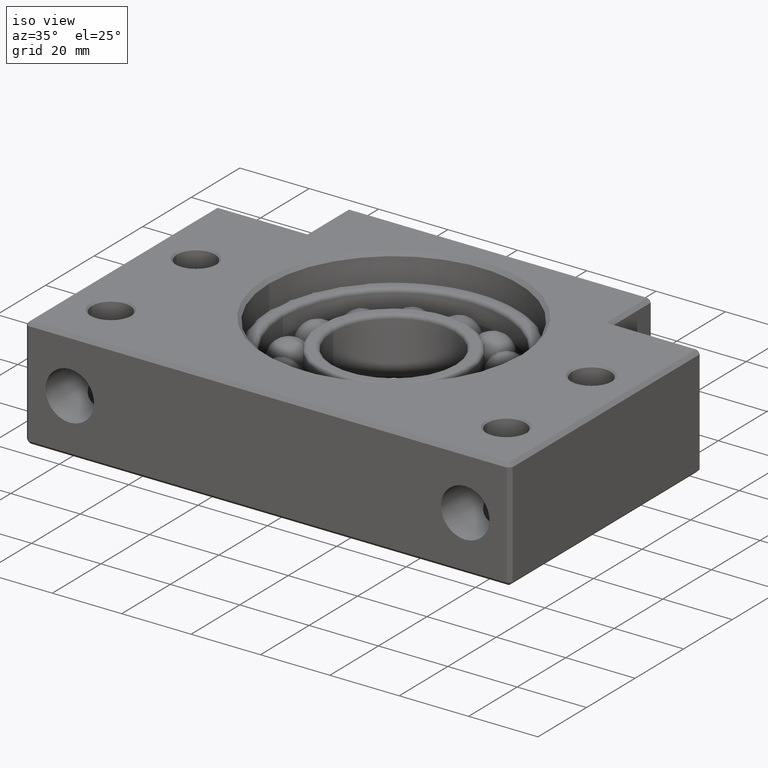
[diagram: clean part render]
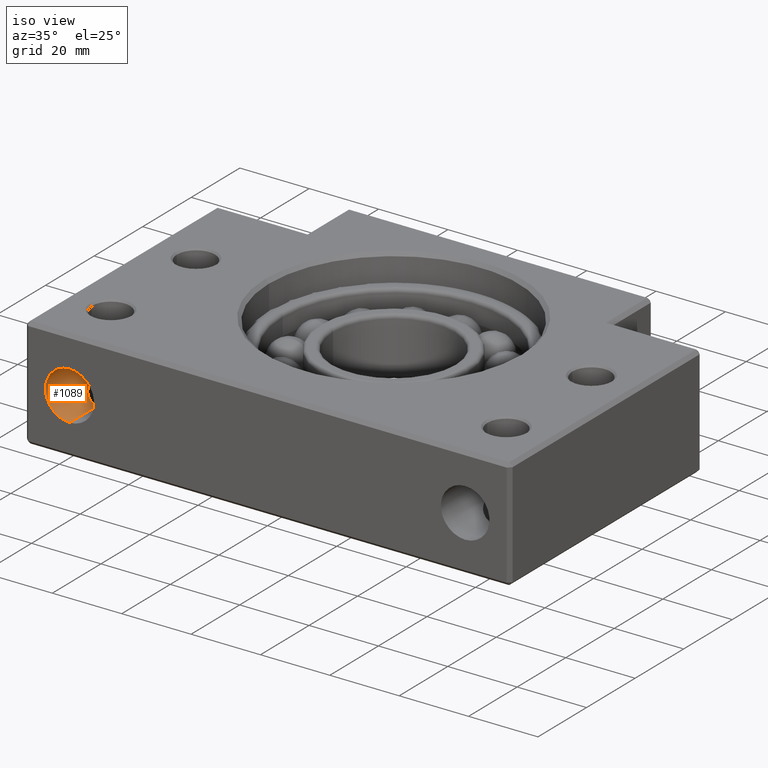
[diagram: same view with one face highlighted and labeled with its STEP entity id]
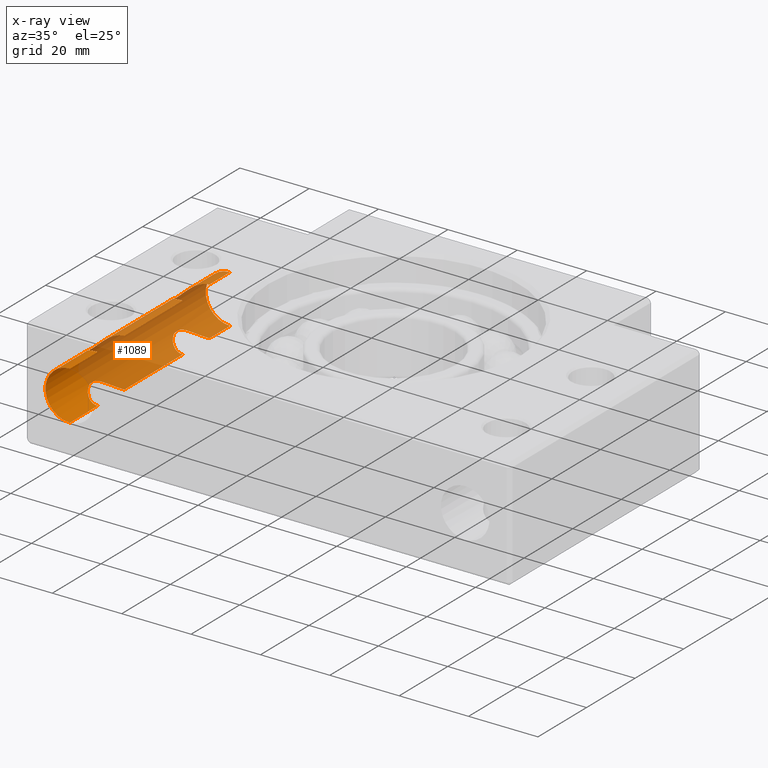
[diagram: x-ray of the same camera — body ghosted, the highlighted face saturated]
A machine part, iso view. The second image highlights one B-rep face of the part: STEP entity #1089.
The next image is the same camera in x-ray: the body ghosted, the highlighted face saturated — about 76% of this face is hidden behind the body in this view.
In plain terms, the highlighted cylindrical surface (edge-blend (fillet) strip) has radius 7 mm, axis along (-0, 1, -0).
Its self-contained STEP definition (entity closure, byte-faithful):
#10 = CARTESIAN_POINT ( 'NONE',  ( -56.99999999999995700, 11.49999999999999300, -6.999999999999992000 ) ) ;
#470 = CARTESIAN_POINT ( 'NONE',  ( -60.41107785468752000, 21.32865308740681700, 6.121139042766801100 ) ) ;
#481 = CARTESIAN_POINT ( 'NONE',  ( -59.83440123587423900, 21.72640024923098100, 6.408585253056894100 ) ) ;
#525 = LINE ( 'NONE', #528, #526 ) ;
#526 = VECTOR ( 'NONE', #527, 1000.000000000000000 ) ;
#527 = DIRECTION ( 'NONE',  ( -0.0000000000000000000, 1.000000000000000000, -0.0000000000000000000 ) ) ;
#528 = CARTESIAN_POINT ( 'NONE',  ( -56.99999999999995700, 78.99999999999995700, -6.999999999999992000 ) ) ;
#539 = CARTESIAN_POINT ( 'NONE',  ( -59.52356978322551800, 21.90067786442644900, 6.538929171008184000 ) ) ;
#560 = CARTESIAN_POINT ( 'NONE',  ( -58.84915946618338700, 22.19284673857340100, 6.760666270634499300 ) ) ;
#1081 = EDGE_CURVE ( 'NONE', #1716, #1712, #3298, .T. ) ;
#1083 = EDGE_CURVE ( 'NONE', #1712, #1093, #3287, .T. ) ;
#1084 = EDGE_LOOP ( 'NONE', ( #1085, #1717, #1130, #1124, #1125, #1123, #1119, #1121, #1103, #1114, #1113, #1104, #1102, #1099, #1097, #1094 ) ) ;
#1085 = ORIENTED_EDGE ( 'NONE', *, *, #1081, .F. ) ;
#1089 = ADVANCED_FACE ( 'NONE', ( #3334 ), #3332, .F. ) ;
#1093 = VERTEX_POINT ( 'NONE', #3319 ) ;
#1094 = ORIENTED_EDGE ( 'NONE', *, *, #1083, .F. ) ;
#1095 = VERTEX_POINT ( 'NONE', #3318 ) ;
#1096 = EDGE_CURVE ( 'NONE', #1093, #1095, #3317, .T. ) ;
#1097 = ORIENTED_EDGE ( 'NONE', *, *, #1096, .F. ) ;
#1098 = EDGE_CURVE ( 'NONE', #1095, #1101, #3383, .T. ) ;
#1099 = ORIENTED_EDGE ( 'NONE', *, *, #1098, .F. ) ;
#1100 = EDGE_CURVE ( 'NONE', #1101, #1107, #3382, .T. ) ;
#1101 = VERTEX_POINT ( 'NONE', #3349 ) ;
#1102 = ORIENTED_EDGE ( 'NONE', *, *, #1100, .F. ) ;
#1103 = ORIENTED_EDGE ( 'NONE', *, *, #1116, .T. ) ;
#1104 = ORIENTED_EDGE ( 'NONE', *, *, #1108, .F. ) ;
#1105 = EDGE_CURVE ( 'NONE', #1117, #1111, #525, .T. ) ;
#1106 = VERTEX_POINT ( 'NONE', #3417 ) ;
#1107 = VERTEX_POINT ( 'NONE', #3416 ) ;
#1108 = EDGE_CURVE ( 'NONE', #1107, #1106, #3415, .T. ) ;
#1109 = VERTEX_POINT ( 'NONE', #3414 ) ;
#1110 = EDGE_CURVE ( 'NONE', #1109, #1115, #3408, .T. ) ;
#1111 = VERTEX_POINT ( 'NONE', #3404 ) ;
#1112 = EDGE_CURVE ( 'NONE', #1106, #1109, #3446, .T. ) ;
#1113 = ORIENTED_EDGE ( 'NONE', *, *, #1112, .F. ) ;
#1114 = ORIENTED_EDGE ( 'NONE', *, *, #1110, .F. ) ;
#1115 = VERTEX_POINT ( 'NONE', #3447 ) ;
#1116 = EDGE_CURVE ( 'NONE', #1111, #1115, #3442, .T. ) ;
#1117 = VERTEX_POINT ( 'NONE', #3443 ) ;
#1118 = EDGE_CURVE ( 'NONE', #1117, #1120, #3419, .T. ) ;
#1119 = ORIENTED_EDGE ( 'NONE', *, *, #1118, .F. ) ;
#1120 = VERTEX_POINT ( 'NONE', #3418 ) ;
#1121 = ORIENTED_EDGE ( 'NONE', *, *, #1105, .T. ) ;
#1122 = EDGE_CURVE ( 'NONE', #1120, #1132, #3483, .T. ) ;
#1123 = ORIENTED_EDGE ( 'NONE', *, *, #1122, .F. ) ;
#1124 = ORIENTED_EDGE ( 'NONE', *, *, #1126, .F. ) ;
#1125 = ORIENTED_EDGE ( 'NONE', *, *, #1131, .T. ) ;
#1126 = EDGE_CURVE ( 'NONE', #1129, #1127, #3453, .T. ) ;
#1127 = VERTEX_POINT ( 'NONE', #3454 ) ;
#1128 = EDGE_CURVE ( 'NONE', #1127, #1883, #3512, .T. ) ;
#1129 = VERTEX_POINT ( 'NONE', #3511 ) ;
#1130 = ORIENTED_EDGE ( 'NONE', *, *, #1128, .F. ) ;
#1131 = EDGE_CURVE ( 'NONE', #1129, #1132, #3513, .T. ) ;
#1132 = VERTEX_POINT ( 'NONE', #3560 ) ;
#1212 = CARTESIAN_POINT ( 'NONE',  ( -57.37848941363127200, 22.49026732173970800, 6.992344828321024300 ) ) ;
#1214 = CARTESIAN_POINT ( 'NONE',  ( -57.18916739242797600, 22.49999999999998600, 6.999999999999990200 ) ) ;
#1215 = CARTESIAN_POINT ( 'NONE',  ( -56.99999999999995700, 22.49999999999998200, 6.999999999999992000 ) ) ;
#1271 = CARTESIAN_POINT ( 'NONE',  ( -57.94654775418632700, 22.42118730039054200, 6.938204906661249900 ) ) ;
#1272 = CARTESIAN_POINT ( 'NONE',  ( -58.49757622360947800, 22.30548424198615400, 6.848052669596945900 ) ) ;
#1273 = CARTESIAN_POINT ( 'NONE',  ( -57.75744854519486900, 22.45092296788131100, 6.961494964141024900 ) ) ;
#1712 = VERTEX_POINT ( 'NONE', #4554 ) ;
#1715 = EDGE_CURVE ( 'NONE', #1716, #1883, #4547, .T. ) ;
#1716 = VERTEX_POINT ( 'NONE', #4608 ) ;
#1717 = ORIENTED_EDGE ( 'NONE', *, *, #1715, .T. ) ;
#1883 = VERTEX_POINT ( 'NONE', #10 ) ;
#1941 = CARTESIAN_POINT ( 'NONE',  ( -61.92347381137409500, 19.47654447005491500, 4.979876225262323400 ) ) ;
#2284 = CARTESIAN_POINT ( 'NONE',  ( -61.75598476305062000, 19.78334726323638600, 5.142333593878026600 ) ) ;
#2808 = CARTESIAN_POINT ( 'NONE',  ( -61.37551244413015900, 20.34982147366051200, 5.469723640949164100 ) ) ;
#3076 = CARTESIAN_POINT ( 'NONE',  ( -60.67929692823609900, 21.10253430879663500, 5.962160812809196700 ) ) ;
#3081 = CARTESIAN_POINT ( 'NONE',  ( -61.16119925742008700, 20.61281529849335900, 5.636400285995638800 ) ) ;
#3287 = LINE ( 'NONE', #3293, #3343 ) ;
#3293 = CARTESIAN_POINT ( 'NONE',  ( -56.99999999999995700, 78.99999999999995700, 6.999999999999992000 ) ) ;
#3294 = DIRECTION ( 'NONE',  ( 0.0000000000000000000, 0.0000000000000000000, 1.000000000000000000 ) ) ;
#3295 = DIRECTION ( 'NONE',  ( -0.0000000000000000000, 1.000000000000000000, -0.0000000000000000000 ) ) ;
#3296 = CARTESIAN_POINT ( 'NONE',  ( -56.99999999999995700, -6.938893903907228400E-014, 0.0000000000000000000 ) ) ;
#3297 = AXIS2_PLACEMENT_3D ( 'NONE', #3296, #3295, #3294 ) ;
#3298 = CIRCLE ( 'NONE', #3297, 6.999999999999978700 ) ;
#3317 = B_SPLINE_CURVE_WITH_KNOTS ( 'NONE', 3,
 ( #3379, #3378, #3377, #3376, #3375, #3374, #3373, #3372, #3371, #3370, #3369, #3368, #3367, #3366, #3365, #3364, #3362, #3361, #3360, #3359, #3358, #3357, #3356, #3355, #3354, #3353 ),
 .UNSPECIFIED., .F., .F.,
 ( 4, 2, 2, 2, 2, 2, 2, 2, 2, 2, 2, 2, 4 ),
 ( 0.009100168984221650900, 0.009667933339297475600, 0.01023569769437330200, 0.01137122640452493300, 0.01193899075960075600, 0.01250675511467657900, 0.01364228382482824200, 0.01477781253497990500, 0.01591334124513156900, 0.01648110560020739700, 0.01704886995528322500, 0.01761663431035905700, 0.01818439866543488500 ),
 .UNSPECIFIED. ) ;
#3318 = CARTESIAN_POINT ( 'NONE',  ( -62.50000000000000000, 17.00000000000009900, 4.330127018922244300 ) ) ;
#3319 = CARTESIAN_POINT ( 'NONE',  ( -56.99999999999995700, 11.49999999999999300, 6.999999999999992000 ) ) ;
#3329 = DIRECTION ( 'NONE',  ( 0.0000000000000000000, 0.0000000000000000000, 1.000000000000000000 ) ) ;
#3330 = DIRECTION ( 'NONE',  ( -0.0000000000000000000, 1.000000000000000000, -0.0000000000000000000 ) ) ;
#3331 = AXIS2_PLACEMENT_3D ( 'NONE', #3333, #3330, #3329 ) ;
#3332 = CYLINDRICAL_SURFACE ( 'NONE', #3331, 6.999999999999992000 ) ;
#3333 = CARTESIAN_POINT ( 'NONE',  ( -56.99999999999995700, 78.99999999999995700, 0.0000000000000000000 ) ) ;
#3334 = FACE_OUTER_BOUND ( 'NONE', #1084, .T. ) ;
#3342 = DIRECTION ( 'NONE',  ( -0.0000000000000000000, 1.000000000000000000, -0.0000000000000000000 ) ) ;
#3343 = VECTOR ( 'NONE', #3342, 1000.000000000000000 ) ;
#3344 = CARTESIAN_POINT ( 'NONE',  ( -62.19897489053062900, 18.82880479304876100, 4.691526582878056600 ) ) ;
#3345 = CARTESIAN_POINT ( 'NONE',  ( -62.30791310285341200, 18.48829667584898600, 4.565112677468007100 ) ) ;
#3346 = CARTESIAN_POINT ( 'NONE',  ( -62.46019509281580900, 17.75844449445986900, 4.381833499097431300 ) ) ;
#3349 = CARTESIAN_POINT ( 'NONE',  ( -56.99999999999995700, 22.49999999999998200, 6.999999999999992000 ) ) ;
#3350 = DIRECTION ( 'NONE',  ( -0.0000000000000000000, 1.000000000000000000, -0.0000000000000000000 ) ) ;
#3351 = VECTOR ( 'NONE', #3350, 1000.000000000000000 ) ;
#3352 = CARTESIAN_POINT ( 'NONE',  ( -56.99999999999995700, 78.99999999999995700, 6.999999999999992000 ) ) ;
#3353 = CARTESIAN_POINT ( 'NONE',  ( -62.50000000000000000, 17.00000000000009900, 4.330127018922244300 ) ) ;
#3354 = CARTESIAN_POINT ( 'NONE',  ( -62.49999999999997200, 16.80891049672258900, 4.330127018922126100 ) ) ;
#3355 = CARTESIAN_POINT ( 'NONE',  ( -62.48984969266152200, 16.61660230920083200, 4.343101475970062400 ) ) ;
#3356 = CARTESIAN_POINT ( 'NONE',  ( -62.45078342435126500, 16.24210587933155400, 4.392031436523083700 ) ) ;
#3357 = CARTESIAN_POINT ( 'NONE',  ( -62.42190384238224300, 16.05808264580418400, 4.427917745149521500 ) ) ;
#3358 = CARTESIAN_POINT ( 'NONE',  ( -62.34632376942315100, 15.69574859376139700, 4.518884706025385600 ) ) ;
#3359 = CARTESIAN_POINT ( 'NONE',  ( -62.29935814562987400, 15.51702475466435900, 4.574220477293203600 ) ) ;
#3360 = CARTESIAN_POINT ( 'NONE',  ( -62.19103193577606000, 15.17363755631995300, 4.696794350649718700 ) ) ;
#3361 = CARTESIAN_POINT ( 'NONE',  ( -62.12945266647452800, 15.00765891409646000, 4.764302600103566700 ) ) ;
#3362 = CARTESIAN_POINT ( 'NONE',  ( -61.92360595969785200, 14.52392750623983600, 4.979714855838087900 ) ) ;
#3364 = CARTESIAN_POINT ( 'NONE',  ( -61.75681184005877400, 14.21786178248860600, 5.141628901966599100 ) ) ;
#3365 = CARTESIAN_POINT ( 'NONE',  ( -61.37446222846923400, 13.64863726899687700, 5.470620335844696300 ) ) ;
#3366 = CARTESIAN_POINT ( 'NONE',  ( -61.15953994909301600, 13.38530805122351800, 5.637612783190779600 ) ) ;
#3367 = CARTESIAN_POINT ( 'NONE',  ( -60.67794339487608100, 12.89628182537623100, 5.962984392515548600 ) ) ;
#3368 = CARTESIAN_POINT ( 'NONE',  ( -60.40983047390309200, 12.67030303922426500, 6.121873033702685000 ) ) ;
#3369 = CARTESIAN_POINT ( 'NONE',  ( -59.97626085934635400, 12.37153630182214800, 6.337818206804790600 ) ) ;
#3370 = CARTESIAN_POINT ( 'NONE',  ( -59.82603231281630900, 12.27818303026110600, 6.406416952761708700 ) ) ;
#3371 = CARTESIAN_POINT ( 'NONE',  ( -59.51316329079838100, 12.10448936242811900, 6.535491341857767400 ) ) ;
#3372 = CARTESIAN_POINT ( 'NONE',  ( -59.34959244157843000, 12.02378349737374700, 6.596249552540329300 ) ) ;
#3373 = CARTESIAN_POINT ( 'NONE',  ( -58.84695576461521000, 11.80654106652575300, 6.761148246207860700 ) ) ;
#3374 = CARTESIAN_POINT ( 'NONE',  ( -58.49576375899206900, 11.69385170063444200, 6.848566437696316500 ) ) ;
#3375 = CARTESIAN_POINT ( 'NONE',  ( -57.94148799000451800, 11.57789430995014100, 6.938922339473251100 ) ) ;
#3376 = CARTESIAN_POINT ( 'NONE',  ( -57.75328170369981300, 11.54855899610625200, 6.961900882275860300 ) ) ;
#3377 = CARTESIAN_POINT ( 'NONE',  ( -57.37769916431904000, 11.50973719341818000, 6.992341564957694500 ) ) ;
#3378 = CARTESIAN_POINT ( 'NONE',  ( -57.18920444376914200, 11.49999999999999600, 6.999999999999994700 ) ) ;
#3379 = CARTESIAN_POINT ( 'NONE',  ( -56.99999999999995700, 11.49999999999999300, 6.999999999999992000 ) ) ;
#3380 = CARTESIAN_POINT ( 'NONE',  ( -62.49999999999999300, 17.38275565765265900, 4.330127018922145700 ) ) ;
#3381 = CARTESIAN_POINT ( 'NONE',  ( -62.50000000000000000, 17.00000000000009900, 4.330127018922244300 ) ) ;
#3382 = LINE ( 'NONE', #3352, #3351 ) ;
#3383 = B_SPLINE_CURVE_WITH_KNOTS ( 'NONE', 3,
 ( #3381, #3380, #3346, #3345, #3344, #1941, #2284, #2808, #3081, #3076, #470, #481, #539, #560, #1272, #1271, #1273, #1212, #1214, #1215 ),
 .UNSPECIFIED., .F., .F.,
 ( 4, 2, 2, 2, 2, 2, 2, 2, 2, 4 ),
 ( 0.01818439866543488500, 0.01932164071898255500, 0.02045888277253022800, 0.02159612482607789800, 0.02273336687962557200, 0.02387060893317324200, 0.02500785098672091100, 0.02614509304026858500, 0.02671371406704240900, 0.02728233509381623400 ),
 .UNSPECIFIED. ) ;
#3384 = CARTESIAN_POINT ( 'NONE',  ( -62.50000000000000000, 51.80891049672258900, 4.330127018922129700 ) ) ;
#3385 = CARTESIAN_POINT ( 'NONE',  ( -62.48984969266152900, 51.61660230920084300, 4.343101475970062400 ) ) ;
#3386 = CARTESIAN_POINT ( 'NONE',  ( -62.45078342435124300, 51.24210587933156100, 4.392031436523081000 ) ) ;
#3387 = CARTESIAN_POINT ( 'NONE',  ( -62.42190384238225000, 51.05808264580418400, 4.427917745149523300 ) ) ;
#3388 = CARTESIAN_POINT ( 'NONE',  ( -62.34632376942317200, 50.69574859376139400, 4.518884706025388300 ) ) ;
#3389 = CARTESIAN_POINT ( 'NONE',  ( -62.29935814562987400, 50.51702475466436900, 4.574220477293201800 ) ) ;
#3390 = CARTESIAN_POINT ( 'NONE',  ( -62.19103193577606700, 50.17363755631995300, 4.696794350649717000 ) ) ;
#3391 = CARTESIAN_POINT ( 'NONE',  ( -62.12945266647454200, 50.00765891409646700, 4.764302600103570200 ) ) ;
#3392 = CARTESIAN_POINT ( 'NONE',  ( -61.92360595969785200, 49.52392750623983600, 4.979714855838090600 ) ) ;
#3393 = CARTESIAN_POINT ( 'NONE',  ( -61.75681184005873800, 49.21786178248860500, 5.141628901966601700 ) ) ;
#3394 = CARTESIAN_POINT ( 'NONE',  ( -61.37446222846923400, 48.64863726899687200, 5.470620335844699900 ) ) ;
#3395 = CARTESIAN_POINT ( 'NONE',  ( -61.15953994909300900, 48.38530805122351800, 5.637612783190780500 ) ) ;
#3396 = CARTESIAN_POINT ( 'NONE',  ( -60.67794339487608100, 47.89628182537623500, 5.962984392515552100 ) ) ;
#3397 = CARTESIAN_POINT ( 'NONE',  ( -60.40983047390308500, 47.67030303922425800, 6.121873033702685900 ) ) ;
#3398 = CARTESIAN_POINT ( 'NONE',  ( -59.97626085934634000, 47.37153630182214000, 6.337818206804792400 ) ) ;
#3399 = CARTESIAN_POINT ( 'NONE',  ( -59.82603231281630900, 47.27818303026112500, 6.406416952761713200 ) ) ;
#3400 = CARTESIAN_POINT ( 'NONE',  ( -59.51316329079838900, 47.10448936242811900, 6.535491341857770900 ) ) ;
#3401 = CARTESIAN_POINT ( 'NONE',  ( -59.34959244157842300, 47.02378349737374900, 6.596249552540330200 ) ) ;
#3402 = CARTESIAN_POINT ( 'NONE',  ( -58.84695576461520300, 46.80654106652575300, 6.761148246207861600 ) ) ;
#3403 = CARTESIAN_POINT ( 'NONE',  ( -58.49576375899206200, 46.69385170063443300, 6.848566437696319100 ) ) ;
#3404 = CARTESIAN_POINT ( 'NONE',  ( -56.99999999999995700, 65.99999999999995700, -7.000000000000006200 ) ) ;
#3405 = DIRECTION ( 'NONE',  ( -0.0000000000000000000, 1.000000000000000000, -0.0000000000000000000 ) ) ;
#3406 = VECTOR ( 'NONE', #3405, 1000.000000000000000 ) ;
#3407 = CARTESIAN_POINT ( 'NONE',  ( -56.99999999999995700, 78.99999999999995700, 6.999999999999992000 ) ) ;
#3408 = LINE ( 'NONE', #3407, #3406 ) ;
#3409 = CARTESIAN_POINT ( 'NONE',  ( -57.94148799000451100, 46.57789430995014600, 6.938922339473253800 ) ) ;
#3410 = CARTESIAN_POINT ( 'NONE',  ( -57.75328170369981300, 46.54855899610624400, 6.961900882275861200 ) ) ;
#3411 = CARTESIAN_POINT ( 'NONE',  ( -57.37769916431904700, 46.50973719341818900, 6.992341564957695400 ) ) ;
#3412 = CARTESIAN_POINT ( 'NONE',  ( -57.18920444376912100, 46.50000000000000000, 6.999999999999992000 ) ) ;
#3413 = CARTESIAN_POINT ( 'NONE',  ( -56.99999999999995700, 46.49999999999999300, 6.999999999999992000 ) ) ;
#3414 = CARTESIAN_POINT ( 'NONE',  ( -56.99999999999995700, 57.49999999999998600, 6.999999999999992000 ) ) ;
#3415 = B_SPLINE_CURVE_WITH_KNOTS ( 'NONE', 3,
 ( #3413, #3412, #3411, #3410, #3409, #3403, #3402, #3401, #3400, #3399, #3398, #3397, #3396, #3395, #3394, #3393, #3392, #3391, #3390, #3389, #3388, #3387, #3386, #3385, #3384, #3448 ),
 .UNSPECIFIED., .F., .F.,
 ( 4, 2, 2, 2, 2, 2, 2, 2, 2, 2, 2, 2, 4 ),
 ( 0.009100168984221643900, 0.009667933339297475600, 0.01023569769437330700, 0.01137122640452499000, 0.01193899075960082700, 0.01250675511467666400, 0.01364228382482831000, 0.01477781253497995700, 0.01591334124513160400, 0.01648110560020742100, 0.01704886995528323900, 0.01761663431035905700, 0.01818439866543487500 ),
 .UNSPECIFIED. ) ;
#3416 = CARTESIAN_POINT ( 'NONE',  ( -56.99999999999995700, 46.49999999999999300, 6.999999999999992000 ) ) ;
#3417 = CARTESIAN_POINT ( 'NONE',  ( -62.50000000000000000, 52.00000000000009900, 4.330127018922244300 ) ) ;
#3418 = CARTESIAN_POINT ( 'NONE',  ( -62.50000000000000000, 51.99999999999987900, -4.330127018922244300 ) ) ;
#3419 = B_SPLINE_CURVE_WITH_KNOTS ( 'NONE', 3,
 ( #3480, #3479, #3478, #3477, #3476, #3475, #3474, #3473, #3472, #3471, #3470, #3469, #3468, #3467, #3466, #3465, #3464, #3463, #3462, #3461, #3460, #3459, #3458, #3457, #3456, #3455 ),
 .UNSPECIFIED., .F., .F.,
 ( 4, 2, 2, 2, 2, 2, 2, 2, 2, 2, 2, 2, 4 ),
 ( 0.009100168984221643900, 0.009667933339297475600, 0.01023569769437330700, 0.01137122640452499000, 0.01193899075960082700, 0.01250675511467666400, 0.01364228382482831000, 0.01477781253497995700, 0.01591334124513160400, 0.01648110560020742100, 0.01704886995528323900, 0.01761663431035905700, 0.01818439866543487500 ),
 .UNSPECIFIED. ) ;
#3420 = CARTESIAN_POINT ( 'NONE',  ( -56.99999999999995700, 57.49999999999998600, 6.999999999999992000 ) ) ;
#3421 = CARTESIAN_POINT ( 'NONE',  ( -57.18916739242796900, 57.49999999999998600, 6.999999999999991100 ) ) ;
#3422 = CARTESIAN_POINT ( 'NONE',  ( -57.37848941363125000, 57.49026732173970100, 6.992344828321023400 ) ) ;
#3423 = CARTESIAN_POINT ( 'NONE',  ( -57.75744854519489000, 57.45092296788132600, 6.961494964141024000 ) ) ;
#3424 = CARTESIAN_POINT ( 'NONE',  ( -57.94654775418632700, 57.42118730039054200, 6.938204906661249900 ) ) ;
#3425 = CARTESIAN_POINT ( 'NONE',  ( -58.49757622360947100, 57.30548424198616400, 6.848052669596944100 ) ) ;
#3426 = CARTESIAN_POINT ( 'NONE',  ( -58.84915946618338700, 57.19284673857340800, 6.760666270634499300 ) ) ;
#3427 = CARTESIAN_POINT ( 'NONE',  ( -59.52356978322550400, 56.90067786442644900, 6.538929171008182300 ) ) ;
#3428 = CARTESIAN_POINT ( 'NONE',  ( -59.83440123587423900, 56.72640024923099100, 6.408585253056896700 ) ) ;
#3429 = CARTESIAN_POINT ( 'NONE',  ( -60.41107785468750500, 56.32865308740682100, 6.121139042766802000 ) ) ;
#3430 = CARTESIAN_POINT ( 'NONE',  ( -60.67929692823611300, 56.10253430879664200, 5.962160812809195000 ) ) ;
#3431 = CARTESIAN_POINT ( 'NONE',  ( -61.16119925742010100, 55.61281529849337300, 5.636400285995637900 ) ) ;
#3432 = CARTESIAN_POINT ( 'NONE',  ( -61.37551244413015900, 55.34982147366051900, 5.469723640949165000 ) ) ;
#3433 = CARTESIAN_POINT ( 'NONE',  ( -61.75598476305059800, 54.78334726323638600, 5.142333593878028400 ) ) ;
#3434 = CARTESIAN_POINT ( 'NONE',  ( -61.92347381137410900, 54.47654447005491100, 4.979876225262327000 ) ) ;
#3435 = CARTESIAN_POINT ( 'NONE',  ( -62.19897489053062900, 53.82880479304877500, 4.691526582878058300 ) ) ;
#3436 = CARTESIAN_POINT ( 'NONE',  ( -62.30791310285341200, 53.48829667584899300, 4.565112677468008900 ) ) ;
#3437 = CARTESIAN_POINT ( 'NONE',  ( -62.46019509281580200, 52.75844449445988000, 4.381833499097432100 ) ) ;
#3438 = DIRECTION ( 'NONE',  ( 0.0000000000000000000, 0.0000000000000000000, 1.000000000000000000 ) ) ;
#3439 = DIRECTION ( 'NONE',  ( -0.0000000000000000000, 1.000000000000000000, -0.0000000000000000000 ) ) ;
#3440 = CARTESIAN_POINT ( 'NONE',  ( -56.99999999999995700, 65.99999999999995700, 0.0000000000000000000 ) ) ;
#3441 = AXIS2_PLACEMENT_3D ( 'NONE', #3440, #3439, #3438 ) ;
#3442 = CIRCLE ( 'NONE', #3441, 7.000000000000006200 ) ;
#3443 = CARTESIAN_POINT ( 'NONE',  ( -56.99999999999995700, 57.49999999999998600, -6.999999999999992000 ) ) ;
#3444 = CARTESIAN_POINT ( 'NONE',  ( -62.49999999999997900, 52.38275565765263800, 4.330127018922143000 ) ) ;
#3445 = CARTESIAN_POINT ( 'NONE',  ( -62.50000000000000000, 52.00000000000009900, 4.330127018922244300 ) ) ;
#3446 = B_SPLINE_CURVE_WITH_KNOTS ( 'NONE', 3,
 ( #3445, #3444, #3437, #3436, #3435, #3434, #3433, #3432, #3431, #3430, #3429, #3428, #3427, #3426, #3425, #3424, #3423, #3422, #3421, #3420 ),
 .UNSPECIFIED., .F., .F.,
 ( 4, 2, 2, 2, 2, 2, 2, 2, 2, 4 ),
 ( 0.01818439866543487500, 0.01932164071898253800, 0.02045888277253020100, 0.02159612482607786400, 0.02273336687962553000, 0.02387060893317319300, 0.02500785098672085600, 0.02614509304026851900, 0.02671371406704236400, 0.02728233509381620600 ),
 .UNSPECIFIED. ) ;
#3447 = CARTESIAN_POINT ( 'NONE',  ( -56.99999999999995700, 65.99999999999995700, 7.000000000000006200 ) ) ;
#3448 = CARTESIAN_POINT ( 'NONE',  ( -62.50000000000000000, 52.00000000000009900, 4.330127018922244300 ) ) ;
#3449 = CARTESIAN_POINT ( 'NONE',  ( -61.92347381137410900, 49.52345552994506100, -4.979876225262327000 ) ) ;
#3450 = CARTESIAN_POINT ( 'NONE',  ( -62.19897489053062900, 50.17119520695122500, -4.691526582878058300 ) ) ;
#3451 = CARTESIAN_POINT ( 'NONE',  ( -62.30791310285341200, 50.51170332415100000, -4.565112677468008900 ) ) ;
#3452 = CARTESIAN_POINT ( 'NONE',  ( -62.46019509281580200, 51.24155550554010600, -4.381833499097432100 ) ) ;
#3453 = B_SPLINE_CURVE_WITH_KNOTS ( 'NONE', 3,
 ( #3508, #3507, #3506, #3505, #3504, #3503, #3502, #3501, #3500, #3499, #3498, #3497, #3496, #3495, #3494, #3493, #3492, #3491, #3490, #3489, #3488, #3487, #3486, #3485, #3484, #3564 ),
 .UNSPECIFIED., .F., .F.,
 ( 4, 2, 2, 2, 2, 2, 2, 2, 2, 2, 2, 2, 4 ),
 ( 0.009100168984221652600, 0.009667933339297487800, 0.01023569769437332500, 0.01137122640452497600, 0.01193899075960079400, 0.01250675511467661200, 0.01364228382482826600, 0.01477781253497992100, 0.01591334124513157600, 0.01648110560020740100, 0.01704886995528322900, 0.01761663431035905700, 0.01818439866543488200 ),
 .UNSPECIFIED. ) ;
#3454 = CARTESIAN_POINT ( 'NONE',  ( -62.50000000000000000, 16.99999999999987600, -4.330127018922244300 ) ) ;
#3455 = CARTESIAN_POINT ( 'NONE',  ( -62.50000000000000000, 51.99999999999987900, -4.330127018922244300 ) ) ;
#3456 = CARTESIAN_POINT ( 'NONE',  ( -62.50000000000000000, 52.19108950327739600, -4.330127018922129700 ) ) ;
#3457 = CARTESIAN_POINT ( 'NONE',  ( -62.48984969266152900, 52.38339769079912900, -4.343101475970062400 ) ) ;
#3458 = CARTESIAN_POINT ( 'NONE',  ( -62.45078342435124300, 52.75789412066843200, -4.392031436523081000 ) ) ;
#3459 = CARTESIAN_POINT ( 'NONE',  ( -62.42190384238225000, 52.94191735419581600, -4.427917745149523300 ) ) ;
#3460 = CARTESIAN_POINT ( 'NONE',  ( -62.34632376942317200, 53.30425140623857800, -4.518884706025388300 ) ) ;
#3461 = CARTESIAN_POINT ( 'NONE',  ( -62.29935814562987400, 53.48297524533561600, -4.574220477293201800 ) ) ;
#3462 = CARTESIAN_POINT ( 'NONE',  ( -62.19103193577606700, 53.82636244368001900, -4.696794350649717000 ) ) ;
#3463 = CARTESIAN_POINT ( 'NONE',  ( -62.12945266647454200, 53.99234108590352600, -4.764302600103570200 ) ) ;
#3464 = CARTESIAN_POINT ( 'NONE',  ( -61.92360595969785200, 54.47607249376014200, -4.979714855838090600 ) ) ;
#3465 = CARTESIAN_POINT ( 'NONE',  ( -61.75681184005873800, 54.78213821751136000, -5.141628901966601700 ) ) ;
#3466 = CARTESIAN_POINT ( 'NONE',  ( -61.37446222846923400, 55.35136273100311400, -5.470620335844699900 ) ) ;
#3467 = CARTESIAN_POINT ( 'NONE',  ( -61.15953994909300900, 55.61469194877648200, -5.637612783190780500 ) ) ;
#3468 = CARTESIAN_POINT ( 'NONE',  ( -60.67794339487608100, 56.10371817462375800, -5.962984392515552100 ) ) ;
#3469 = CARTESIAN_POINT ( 'NONE',  ( -60.40983047390308500, 56.32969696077572100, -6.121873033702685900 ) ) ;
#3470 = CARTESIAN_POINT ( 'NONE',  ( -59.97626085934634000, 56.62846369817784600, -6.337818206804792400 ) ) ;
#3471 = CARTESIAN_POINT ( 'NONE',  ( -59.82603231281630900, 56.72181696973888900, -6.406416952761713200 ) ) ;
#3472 = CARTESIAN_POINT ( 'NONE',  ( -59.51316329079838900, 56.89551063757186000, -6.535491341857770900 ) ) ;
#3473 = CARTESIAN_POINT ( 'NONE',  ( -59.34959244157842300, 56.97621650262622200, -6.596249552540330200 ) ) ;
#3474 = CARTESIAN_POINT ( 'NONE',  ( -58.84695576461520300, 57.19345893347421100, -6.761148246207861600 ) ) ;
#3475 = CARTESIAN_POINT ( 'NONE',  ( -58.49576375899206200, 57.30614829936552500, -6.848566437696319100 ) ) ;
#3476 = CARTESIAN_POINT ( 'NONE',  ( -57.94148799000451100, 57.42210569004984000, -6.938922339473253800 ) ) ;
#3477 = CARTESIAN_POINT ( 'NONE',  ( -57.75328170369981300, 57.45144100389372000, -6.961900882275861200 ) ) ;
#3478 = CARTESIAN_POINT ( 'NONE',  ( -57.37769916431904700, 57.49026280658180400, -6.992341564957695400 ) ) ;
#3479 = CARTESIAN_POINT ( 'NONE',  ( -57.18920444376912100, 57.50000000000001400, -6.999999999999992000 ) ) ;
#3480 = CARTESIAN_POINT ( 'NONE',  ( -56.99999999999995700, 57.49999999999998600, -6.999999999999992000 ) ) ;
#3481 = CARTESIAN_POINT ( 'NONE',  ( -62.49999999999997900, 51.61724434234732000, -4.330127018922143000 ) ) ;
#3482 = CARTESIAN_POINT ( 'NONE',  ( -62.50000000000000000, 51.99999999999987900, -4.330127018922244300 ) ) ;
#3483 = B_SPLINE_CURVE_WITH_KNOTS ( 'NONE', 3,
 ( #3482, #3481, #3452, #3451, #3450, #3449, #3527, #3526, #3525, #3524, #3523, #3522, #3521, #3520, #3519, #3518, #3517, #3516, #3515, #3514 ),
 .UNSPECIFIED., .F., .F.,
 ( 4, 2, 2, 2, 2, 2, 2, 2, 2, 4 ),
 ( 0.01818439866543487500, 0.01932164071898253800, 0.02045888277253020100, 0.02159612482607786400, 0.02273336687962553000, 0.02387060893317319300, 0.02500785098672085600, 0.02614509304026851900, 0.02671371406704236400, 0.02728233509381620600 ),
 .UNSPECIFIED. ) ;
#3484 = CARTESIAN_POINT ( 'NONE',  ( -62.49999999999997200, 17.19108950327737900, -4.330127018922127000 ) ) ;
#3485 = CARTESIAN_POINT ( 'NONE',  ( -62.48984969266152200, 17.38339769079914300, -4.343101475970063200 ) ) ;
#3486 = CARTESIAN_POINT ( 'NONE',  ( -62.45078342435124300, 17.75789412066842800, -4.392031436523081900 ) ) ;
#3487 = CARTESIAN_POINT ( 'NONE',  ( -62.42190384238222800, 17.94191735419578000, -4.427917745149522400 ) ) ;
#3488 = CARTESIAN_POINT ( 'NONE',  ( -62.34632376942317900, 18.30425140623857800, -4.518884706025387400 ) ) ;
#3489 = CARTESIAN_POINT ( 'NONE',  ( -62.29935814562989500, 18.48297524533560600, -4.574220477293202700 ) ) ;
#3490 = CARTESIAN_POINT ( 'NONE',  ( -62.19103193577606000, 18.82636244368001500, -4.696794350649717000 ) ) ;
#3491 = CARTESIAN_POINT ( 'NONE',  ( -62.12945266647453500, 18.99234108590351900, -4.764302600103568400 ) ) ;
#3492 = CARTESIAN_POINT ( 'NONE',  ( -61.92360595969785200, 19.47607249376013900, -4.979714855838090600 ) ) ;
#3493 = CARTESIAN_POINT ( 'NONE',  ( -61.75681184005873800, 19.78213821751136300, -5.141628901966601700 ) ) ;
#3494 = CARTESIAN_POINT ( 'NONE',  ( -61.37446222846924100, 20.35136273100311000, -5.470620335844700800 ) ) ;
#3495 = CARTESIAN_POINT ( 'NONE',  ( -61.15953994909299500, 20.61469194877646400, -5.637612783190779600 ) ) ;
#3496 = CARTESIAN_POINT ( 'NONE',  ( -60.67794339487605300, 21.10371817462374000, -5.962984392515547700 ) ) ;
#3497 = CARTESIAN_POINT ( 'NONE',  ( -60.40983047390309200, 21.32969696077571300, -6.121873033702682300 ) ) ;
#3498 = CARTESIAN_POINT ( 'NONE',  ( -59.97626085934636100, 21.62846369817783200, -6.337818206804791500 ) ) ;
#3499 = CARTESIAN_POINT ( 'NONE',  ( -59.82603231281628800, 21.72181696973887500, -6.406416952761709600 ) ) ;
#3500 = CARTESIAN_POINT ( 'NONE',  ( -59.51316329079839600, 21.89551063757186000, -6.535491341857770900 ) ) ;
#3501 = CARTESIAN_POINT ( 'NONE',  ( -59.34959244157843700, 21.97621650262622900, -6.596249552540331100 ) ) ;
#3502 = CARTESIAN_POINT ( 'NONE',  ( -58.84695576461521700, 22.19345893347422900, -6.761148246207861600 ) ) ;
#3503 = CARTESIAN_POINT ( 'NONE',  ( -58.49576375899209100, 22.30614829936553900, -6.848566437696317300 ) ) ;
#3504 = CARTESIAN_POINT ( 'NONE',  ( -57.94148799000452500, 22.42210569004983600, -6.938922339473253800 ) ) ;
#3505 = CARTESIAN_POINT ( 'NONE',  ( -57.75328170369980500, 22.45144100389372700, -6.961900882275858600 ) ) ;
#3506 = CARTESIAN_POINT ( 'NONE',  ( -57.37769916431904000, 22.49026280658179600, -6.992341564957694500 ) ) ;
#3507 = CARTESIAN_POINT ( 'NONE',  ( -57.18920444376913500, 22.49999999999998900, -6.999999999999992000 ) ) ;
#3508 = CARTESIAN_POINT ( 'NONE',  ( -56.99999999999995700, 22.49999999999998200, -6.999999999999992000 ) ) ;
#3509 = CARTESIAN_POINT ( 'NONE',  ( -62.50000000000000000, 16.61724434234732700, -4.330127018922147500 ) ) ;
#3510 = CARTESIAN_POINT ( 'NONE',  ( -62.50000000000000000, 16.99999999999987600, -4.330127018922244300 ) ) ;
#3511 = CARTESIAN_POINT ( 'NONE',  ( -56.99999999999995700, 22.49999999999998200, -6.999999999999992000 ) ) ;
#3512 = B_SPLINE_CURVE_WITH_KNOTS ( 'NONE', 3,
 ( #3510, #3509, #3557, #3556, #3555, #3554, #3553, #3552, #3551, #3550, #3549, #3548, #3547, #3546, #3545, #3544, #3543, #3542, #3541, #3540 ),
 .UNSPECIFIED., .F., .F.,
 ( 4, 2, 2, 2, 2, 2, 2, 2, 2, 4 ),
 ( 0.01818439866543488200, 0.01932164071898255500, 0.02045888277253022500, 0.02159612482607789500, 0.02273336687962556500, 0.02387060893317323500, 0.02500785098672090800, 0.02614509304026857400, 0.02671371406704240200, 0.02728233509381622700 ),
 .UNSPECIFIED. ) ;
#3513 = LINE ( 'NONE', #3563, #3562 ) ;
#3514 = CARTESIAN_POINT ( 'NONE',  ( -56.99999999999995700, 46.49999999999999300, -6.999999999999992000 ) ) ;
#3515 = CARTESIAN_POINT ( 'NONE',  ( -57.18916739242796900, 46.49999999999998600, -6.999999999999991100 ) ) ;
#3516 = CARTESIAN_POINT ( 'NONE',  ( -57.37848941363125000, 46.50973267826024900, -6.992344828321023400 ) ) ;
#3517 = CARTESIAN_POINT ( 'NONE',  ( -57.75744854519489000, 46.54907703211868900, -6.961494964141024000 ) ) ;
#3518 = CARTESIAN_POINT ( 'NONE',  ( -57.94654775418632700, 46.57881269960943600, -6.938204906661249900 ) ) ;
#3519 = CARTESIAN_POINT ( 'NONE',  ( -58.49757622360947100, 46.69451575801382900, -6.848052669596944100 ) ) ;
#3520 = CARTESIAN_POINT ( 'NONE',  ( -58.84915946618338700, 46.80715326142658500, -6.760666270634499300 ) ) ;
#3521 = CARTESIAN_POINT ( 'NONE',  ( -59.52356978322550400, 47.09932213557353700, -6.538929171008182300 ) ) ;
#3522 = CARTESIAN_POINT ( 'NONE',  ( -59.83440123587423900, 47.27359975076900900, -6.408585253056896700 ) ) ;
#3523 = CARTESIAN_POINT ( 'NONE',  ( -60.41107785468750500, 47.67134691259316500, -6.121139042766802000 ) ) ;
#3524 = CARTESIAN_POINT ( 'NONE',  ( -60.67929692823611300, 47.89746569120335800, -5.962160812809195000 ) ) ;
#3525 = CARTESIAN_POINT ( 'NONE',  ( -61.16119925742010100, 48.38718470150661900, -5.636400285995637900 ) ) ;
#3526 = CARTESIAN_POINT ( 'NONE',  ( -61.37551244413015900, 48.65017852633945900, -5.469723640949165000 ) ) ;
#3527 = CARTESIAN_POINT ( 'NONE',  ( -61.75598476305059800, 49.21665273676359200, -5.142333593878028400 ) ) ;
#3540 = CARTESIAN_POINT ( 'NONE',  ( -56.99999999999995700, 11.49999999999999300, -6.999999999999992000 ) ) ;
#3541 = CARTESIAN_POINT ( 'NONE',  ( -57.18916739242799700, 11.49999999999999300, -6.999999999999992900 ) ) ;
#3542 = CARTESIAN_POINT ( 'NONE',  ( -57.37848941363125000, 11.50973267826026900, -6.992344828321024300 ) ) ;
#3543 = CARTESIAN_POINT ( 'NONE',  ( -57.75744854519485500, 11.54907703211866600, -6.961494964141024000 ) ) ;
#3544 = CARTESIAN_POINT ( 'NONE',  ( -57.94654775418634100, 11.57881269960944000, -6.938204906661249900 ) ) ;
#3545 = CARTESIAN_POINT ( 'NONE',  ( -58.49757622360945000, 11.69451575801382000, -6.848052669596943300 ) ) ;
#3546 = CARTESIAN_POINT ( 'NONE',  ( -58.84915946618338700, 11.80715326142656700, -6.760666270634499300 ) ) ;
#3547 = CARTESIAN_POINT ( 'NONE',  ( -59.52356978322551100, 12.09932213557353400, -6.538929171008183200 ) ) ;
#3548 = CARTESIAN_POINT ( 'NONE',  ( -59.83440123587422500, 12.27359975076899400, -6.408585253056894100 ) ) ;
#3549 = CARTESIAN_POINT ( 'NONE',  ( -60.41107785468752000, 12.67134691259316300, -6.121139042766799300 ) ) ;
#3550 = CARTESIAN_POINT ( 'NONE',  ( -60.67929692823610600, 12.89746569120333700, -5.962160812809195000 ) ) ;
#3551 = CARTESIAN_POINT ( 'NONE',  ( -61.16119925742010100, 13.38718470150661100, -5.636400285995642400 ) ) ;
#3552 = CARTESIAN_POINT ( 'NONE',  ( -61.37551244413015900, 13.65017852633945800, -5.469723640949163200 ) ) ;
#3553 = CARTESIAN_POINT ( 'NONE',  ( -61.75598476305062000, 14.21665273676359000, -5.142333593878026600 ) ) ;
#3554 = CARTESIAN_POINT ( 'NONE',  ( -61.92347381137409500, 14.52345552994506900, -4.979876225262323400 ) ) ;
#3555 = CARTESIAN_POINT ( 'NONE',  ( -62.19897489053062900, 15.17119520695121800, -4.691526582878056600 ) ) ;
#3556 = CARTESIAN_POINT ( 'NONE',  ( -62.30791310285341900, 15.51170332415099700, -4.565112677468008000 ) ) ;
#3557 = CARTESIAN_POINT ( 'NONE',  ( -62.46019509281578800, 16.24155550554010600, -4.381833499097430400 ) ) ;
#3560 = CARTESIAN_POINT ( 'NONE',  ( -56.99999999999995700, 46.49999999999999300, -6.999999999999992000 ) ) ;
#3561 = DIRECTION ( 'NONE',  ( -0.0000000000000000000, 1.000000000000000000, -0.0000000000000000000 ) ) ;
#3562 = VECTOR ( 'NONE', #3561, 1000.000000000000000 ) ;
#3563 = CARTESIAN_POINT ( 'NONE',  ( -56.99999999999995700, 78.99999999999995700, -6.999999999999992000 ) ) ;
#3564 = CARTESIAN_POINT ( 'NONE',  ( -62.50000000000000000, 16.99999999999987600, -4.330127018922244300 ) ) ;
#4544 = DIRECTION ( 'NONE',  ( -0.0000000000000000000, 1.000000000000000000, -0.0000000000000000000 ) ) ;
#4545 = VECTOR ( 'NONE', #4544, 1000.000000000000000 ) ;
#4546 = CARTESIAN_POINT ( 'NONE',  ( -56.99999999999995700, 78.99999999999995700, -6.999999999999992000 ) ) ;
#4547 = LINE ( 'NONE', #4546, #4545 ) ;
#4554 = CARTESIAN_POINT ( 'NONE',  ( -56.99999999999995700, -6.938893903907228400E-014, 6.999999999999978700 ) ) ;
#4608 = CARTESIAN_POINT ( 'NONE',  ( -56.99999999999995700, -6.938893903907228400E-014, -6.999999999999978700 ) ) ;